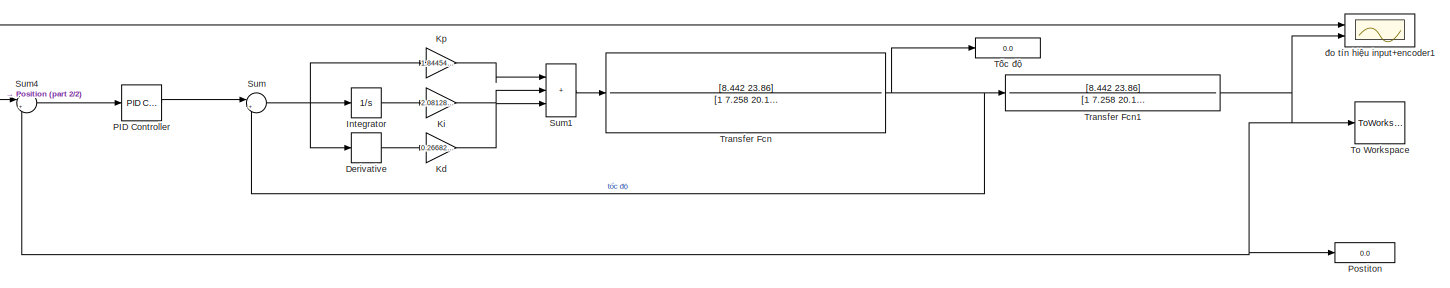
[diagram: root canvas - part 1/2, most of the canvas]
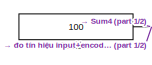
[diagram: root canvas - part 2/2, middle left region]
MODEL slx_b46c775e1a09
KIND model
CONFIG AbsTol = auto
CONFIG EnableMultiTasking = on
CONFIG FixedStep = auto
CONFIG MaxStep = auto
CONFIG MinStep = auto
CONFIG RelTol = 1e-3
CONFIG SampleTimeConstraint = Unconstrained
CONFIG SolverName = FixedStepAuto
CONFIG StartTime = 0.0
CONFIG StopTime = 10.0
BLOCK [Derivative] Derivative
BLOCK [Integrator] Integrator
  Ports = [1, 1]
BLOCK [Gain] Kd
  Gain = 0.266829579777013
BLOCK [Gain] Ki
  Gain = 2.08128367760483
BLOCK [Gain] Kp
  Gain = 1.84454792210971
BLOCK [Reference] PID Controller  REF=slpidlib/PID Controller
  Ports = [1, 1]
  SourceBlock = slpidlib/PID Controller
  SourceProductBaseCode = SL
  SourceType = PID 1dof
BLOCK [Constant] Position
  OutDataTypeStr = int16
  OutMax = [270]
  OutMin = [-270]
  Value = 100
  VectorParams1D = off
BLOCK [Display] Postiton
  Decimation = 1
  Ports = [1]
BLOCK [Sum] Sum
  Inputs = |+-
  Ports = [2, 1]
BLOCK [Sum] Sum1
  IconShape = rectangular
  Inputs = |+++
  Ports = [3, 1]
BLOCK [Sum] Sum4
  Inputs = |+-
  Ports = [2, 1]
BLOCK [ToWorkspace] To Workspace
  MaxDataPoints = inf
  Ports = [1]
  SampleTime = -1
  Save2DSignal = 2-D array (concatenate along first dimension)
  VariableName = hamtruyenDC
BLOCK [TransferFcn] Transfer Fcn
  Denominator = [1 7.258 20.12 14.48]
  Numerator = [8.442 23.86]
BLOCK [TransferFcn] Transfer Fcn1
  Denominator = [1 7.258 20.12]
  Numerator = [8.442 23.86]
BLOCK [Display] Tốc độ
  Decimation = 1
  Ports = [1]
BLOCK [Scope] đo tín hiệu input+encoder1
  Floating = off
  NumInputPorts = 2
  Ports = [2]
  ScopeSpecificationString = Simulink.scopes.TimeScopeBlockCfg('CurrentConfiguration', extmgr.ConfigurationSet(extmgr.Configuration('Core','General UI',true,'FigureColor',[1 1 1]),extmgr.Configuration('Core','Source UI',true),extmgr.Configuration('Sources','WiredSimulink',true,'DataLoggingVariableName','ScopeData1'),extmgr.Configuration('Visuals','Time Domain',true,'SerializedDisplays',{struct('MinYLimReal','-150','MaxYLimRea...<+1861ch>
LINE Derivative:1 -> Kd:1
LINE Integrator:1 -> Ki:1
LINE Kd:1 -> Sum1:3
LINE Ki:1 -> Sum1:2
LINE Kp:1 -> Sum1:1
LINE PID Controller:1 -> Sum:1
NET Position:1 -> Sum4:1, đo tín hiệu input+encoder1:1
LINE Sum1:1 -> Transfer Fcn:1
LINE Sum4:1 -> PID Controller:1
NET Sum:1 -> Derivative:1, Integrator:1, Kp:1
NET Transfer Fcn1:1 -> Postiton:1, Sum4:2, To Workspace:1, đo tín hiệu input+encoder1:2
NET Transfer Fcn:1 -> Sum:2, Transfer Fcn1:1, Tốc độ:1
note: NET lines group one-source signal fan-out (src -> all destinations, sorted); 1:1 wires keep LINE
